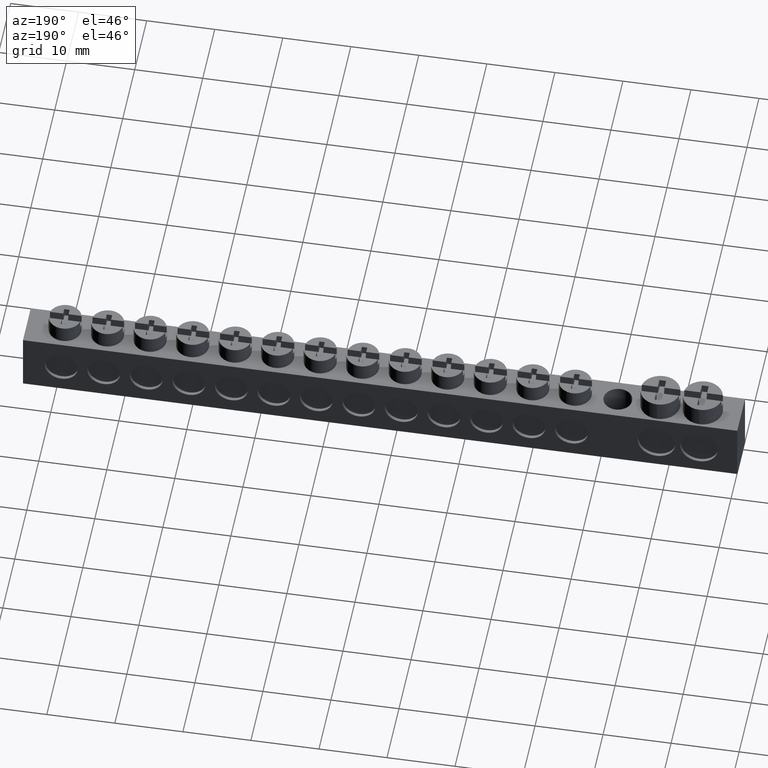
[diagram: clean part render]
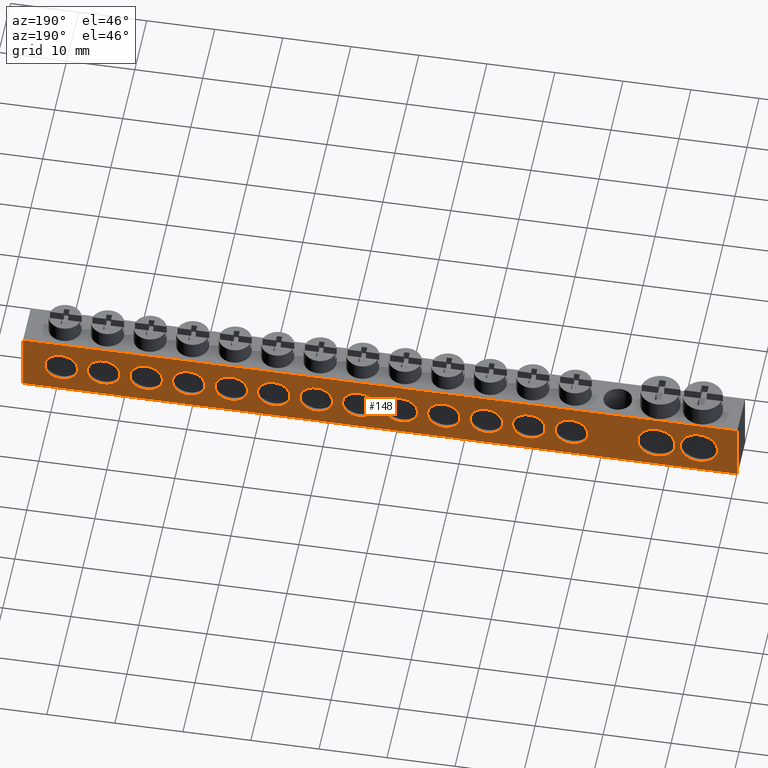
[diagram: same view with one face highlighted and labeled with its STEP entity id]
A machine part, auxiliary view. The second image highlights one B-rep face of the part: STEP entity #148.
In plain terms, the highlighted planar face has unit normal (0, -1, 0).
Its self-contained STEP definition (entity closure, byte-faithful):
#148 = ADVANCED_FACE ( 'NONE', ( #1503, #1506, #1535, #1483, #1520, #1489, #1499, #1537, #1522, #1485, #1498, #1500, #1502, #1505, #1497, #1526 ), #1501, .F. ) ;
#401 = EDGE_CURVE ( 'NONE', #523, #531, #9415, .T. ) ;
#403 = EDGE_CURVE ( 'NONE', #517, #518, #9399, .T. ) ;
#413 = EDGE_CURVE ( 'NONE', #585, #530, #9438, .T. ) ;
#417 = EDGE_CURVE ( 'NONE', #575, #554, #9420, .T. ) ;
#428 = EDGE_CURVE ( 'NONE', #514, #597, #9416, .T. ) ;
#435 = EDGE_CURVE ( 'NONE', #516, #625, #9429, .T. ) ;
#464 = VERTEX_POINT ( 'NONE', #6217 ) ;
#478 = VERTEX_POINT ( 'NONE', #6266 ) ;
#498 = VERTEX_POINT ( 'NONE', #6177 ) ;
#499 = VERTEX_POINT ( 'NONE', #9116 ) ;
#514 = VERTEX_POINT ( 'NONE', #9151 ) ;
#515 = VERTEX_POINT ( 'NONE', #9168 ) ;
#516 = VERTEX_POINT ( 'NONE', #9173 ) ;
#517 = VERTEX_POINT ( 'NONE', #9170 ) ;
#518 = VERTEX_POINT ( 'NONE', #9149 ) ;
#520 = VERTEX_POINT ( 'NONE', #9181 ) ;
#521 = VERTEX_POINT ( 'NONE', #9121 ) ;
#523 = VERTEX_POINT ( 'NONE', #9129 ) ;
#527 = VERTEX_POINT ( 'NONE', #9162 ) ;
#530 = VERTEX_POINT ( 'NONE', #9155 ) ;
#531 = VERTEX_POINT ( 'NONE', #9145 ) ;
#539 = VERTEX_POINT ( 'NONE', #8037 ) ;
#543 = VERTEX_POINT ( 'NONE', #8027 ) ;
#552 = VERTEX_POINT ( 'NONE', #8039 ) ;
#554 = VERTEX_POINT ( 'NONE', #8032 ) ;
#560 = VERTEX_POINT ( 'NONE', #8082 ) ;
#562 = VERTEX_POINT ( 'NONE', #8061 ) ;
#566 = VERTEX_POINT ( 'NONE', #8040 ) ;
#572 = VERTEX_POINT ( 'NONE', #8075 ) ;
#573 = VERTEX_POINT ( 'NONE', #8046 ) ;
#575 = VERTEX_POINT ( 'NONE', #8041 ) ;
#576 = VERTEX_POINT ( 'NONE', #8033 ) ;
#581 = VERTEX_POINT ( 'NONE', #8054 ) ;
#585 = VERTEX_POINT ( 'NONE', #8077 ) ;
#586 = VERTEX_POINT ( 'NONE', #8035 ) ;
#597 = VERTEX_POINT ( 'NONE', #8065 ) ;
#618 = VERTEX_POINT ( 'NONE', #8097 ) ;
#625 = VERTEX_POINT ( 'NONE', #8098 ) ;
#637 = VERTEX_POINT ( 'NONE', #8090 ) ;
#639 = VERTEX_POINT ( 'NONE', #8138 ) ;
#1483 = FACE_BOUND ( 'NONE', #4292, .T. ) ;
#1485 = FACE_BOUND ( 'NONE', #4327, .T. ) ;
#1489 = FACE_BOUND ( 'NONE', #4314, .T. ) ;
#1497 = FACE_BOUND ( 'NONE', #4398, .T. ) ;
#1498 = FACE_BOUND ( 'NONE', #4274, .T. ) ;
#1499 = FACE_BOUND ( 'NONE', #4270, .T. ) ;
#1500 = FACE_BOUND ( 'NONE', #4400, .T. ) ;
#1501 = PLANE ( 'NONE',  #9128 ) ;
#1502 = FACE_BOUND ( 'NONE', #4330, .T. ) ;
#1503 = FACE_OUTER_BOUND ( 'NONE', #4334, .T. ) ;
#1505 = FACE_BOUND ( 'NONE', #4406, .T. ) ;
#1506 = FACE_BOUND ( 'NONE', #4343, .T. ) ;
#1507 = CARTESIAN_POINT ( 'NONE',  ( 0.0000000000000000000, 6.499999999999999100, 9.000000000000001800 ) ) ;
#1511 = DIRECTION ( 'NONE',  ( 1.000000000000000000, 8.308062624409994900E-018, 0.0000000000000000000 ) ) ;
#1515 = DIRECTION ( 'NONE',  ( 8.308062624409994900E-018, -1.000000000000000000, 0.0000000000000000000 ) ) ;
#1520 = FACE_BOUND ( 'NONE', #4313, .T. ) ;
#1522 = FACE_BOUND ( 'NONE', #4271, .T. ) ;
#1526 = FACE_BOUND ( 'NONE', #4294, .T. ) ;
#1535 = FACE_BOUND ( 'NONE', #4322, .T. ) ;
#1537 = FACE_BOUND ( 'NONE', #4305, .T. ) ;
#1796 = CARTESIAN_POINT ( 'NONE',  ( 24.07500000000002800, 6.499999999999999100, 4.399999999999825400 ) ) ;
#1801 = DIRECTION ( 'NONE',  ( 0.0000000000000000000, 0.0000000000000000000, -1.000000000000000000 ) ) ;
#1806 = DIRECTION ( 'NONE',  ( 0.0000000000000000000, 1.000000000000000000, 0.0000000000000000000 ) ) ;
#1915 = ORIENTED_EDGE ( 'NONE', *, *, #6979, .F. ) ;
#1916 = ORIENTED_EDGE ( 'NONE', *, *, #7006, .F. ) ;
#1917 = ORIENTED_EDGE ( 'NONE', *, *, #417, .F. ) ;
#1918 = ORIENTED_EDGE ( 'NONE', *, *, #6989, .F. ) ;
#1919 = ORIENTED_EDGE ( 'NONE', *, *, #428, .F. ) ;
#2148 = CIRCLE ( 'NONE', #2170, 2.400000000000000800 ) ;
#2166 = VECTOR ( 'NONE', #9658, 1000.000000000000000 ) ;
#2169 = CIRCLE ( 'NONE', #2186, 2.400000000000000800 ) ;
#2170 = AXIS2_PLACEMENT_3D ( 'NONE', #9639, #9640, #9641 ) ;
#2172 = CIRCLE ( 'NONE', #2181, 2.400000000000000800 ) ;
#2181 = AXIS2_PLACEMENT_3D ( 'NONE', #9668, #9685, #9687 ) ;
#2186 = AXIS2_PLACEMENT_3D ( 'NONE', #9657, #9666, #9638 ) ;
#2204 = AXIS2_PLACEMENT_3D ( 'NONE', #9743, #9749, #9765 ) ;
#2205 = CIRCLE ( 'NONE', #2240, 2.400000000000000800 ) ;
#2214 = CIRCLE ( 'NONE', #2215, 2.400000000000000800 ) ;
#2215 = AXIS2_PLACEMENT_3D ( 'NONE', #9764, #9776, #9772 ) ;
#2218 = CIRCLE ( 'NONE', #2292, 2.749999999999998200 ) ;
#2221 = VECTOR ( 'NONE', #9697, 1000.000000000000000 ) ;
#2228 = VECTOR ( 'NONE', #9701, 1000.000000000000000 ) ;
#2229 = CIRCLE ( 'NONE', #2245, 2.400000000000000800 ) ;
#2234 = CIRCLE ( 'NONE', #2247, 2.400000000000000800 ) ;
#2235 = VECTOR ( 'NONE', #9695, 1000.000000000000000 ) ;
#2237 = CIRCLE ( 'NONE', #2204, 2.400000000000000800 ) ;
#2240 = AXIS2_PLACEMENT_3D ( 'NONE', #9750, #9751, #9758 ) ;
#2245 = AXIS2_PLACEMENT_3D ( 'NONE', #9736, #9737, #9730 ) ;
#2247 = AXIS2_PLACEMENT_3D ( 'NONE', #9723, #9712, #9707 ) ;
#2250 = CIRCLE ( 'NONE', #2308, 2.400000000000000800 ) ;
#2254 = CIRCLE ( 'NONE', #2256, 2.400000000000000800 ) ;
#2255 = CIRCLE ( 'NONE', #2279, 2.400000000000000800 ) ;
#2256 = AXIS2_PLACEMENT_3D ( 'NONE', #9801, #9787, #9793 ) ;
#2257 = CIRCLE ( 'NONE', #2265, 2.400000000000000800 ) ;
#2262 = CIRCLE ( 'NONE', #2294, 2.749999999999998200 ) ;
#2263 = AXIS2_PLACEMENT_3D ( 'NONE', #9803, #9794, #9797 ) ;
#2265 = AXIS2_PLACEMENT_3D ( 'NONE', #9829, #9839, #9831 ) ;
#2279 = AXIS2_PLACEMENT_3D ( 'NONE', #9781, #9780, #9791 ) ;
#2284 = CIRCLE ( 'NONE', #2263, 2.400000000000000800 ) ;
#2292 = AXIS2_PLACEMENT_3D ( 'NONE', #9784, #9805, #9810 ) ;
#2294 = AXIS2_PLACEMENT_3D ( 'NONE', #9783, #9800, #9802 ) ;
#2308 = AXIS2_PLACEMENT_3D ( 'NONE', #9779, #9798, #9789 ) ;
#2311 = CIRCLE ( 'NONE', #2317, 2.400000000000000800 ) ;
#2317 = AXIS2_PLACEMENT_3D ( 'NONE', #9866, #9899, #9895 ) ;
#2363 = CIRCLE ( 'NONE', #2366, 2.400000000000000800 ) ;
#2366 = AXIS2_PLACEMENT_3D ( 'NONE', #1796, #1806, #1801 ) ;
#3227 = AXIS2_PLACEMENT_3D ( 'NONE', #6582, #6606, #6585 ) ;
#3234 = AXIS2_PLACEMENT_3D ( 'NONE', #6574, #6603, #6577 ) ;
#3242 = CIRCLE ( 'NONE', #3227, 2.400000000000000800 ) ;
#3252 = CIRCLE ( 'NONE', #3272, 2.400000000000000800 ) ;
#3255 = CIRCLE ( 'NONE', #3256, 2.400000000000000800 ) ;
#3256 = AXIS2_PLACEMENT_3D ( 'NONE', #6625, #6643, #6616 ) ;
#3257 = CIRCLE ( 'NONE', #3261, 2.400000000000000800 ) ;
#3261 = AXIS2_PLACEMENT_3D ( 'NONE', #6653, #6652, #6634 ) ;
#3267 = CIRCLE ( 'NONE', #3280, 2.400000000000000800 ) ;
#3272 = AXIS2_PLACEMENT_3D ( 'NONE', #6596, #6578, #6571 ) ;
#3279 = CIRCLE ( 'NONE', #3234, 2.400000000000000800 ) ;
#3280 = AXIS2_PLACEMENT_3D ( 'NONE', #6615, #6635, #6651 ) ;
#3314 = AXIS2_PLACEMENT_3D ( 'NONE', #6720, #6721, #6730 ) ;
#3325 = CIRCLE ( 'NONE', #3314, 2.400000000000000800 ) ;
#3828 = ORIENTED_EDGE ( 'NONE', *, *, #5173, .F. ) ;
#3830 = ORIENTED_EDGE ( 'NONE', *, *, #435, .F. ) ;
#3832 = ORIENTED_EDGE ( 'NONE', *, *, #5211, .F. ) ;
#3834 = ORIENTED_EDGE ( 'NONE', *, *, #7015, .F. ) ;
#3835 = ORIENTED_EDGE ( 'NONE', *, *, #6963, .F. ) ;
#3838 = ORIENTED_EDGE ( 'NONE', *, *, #413, .F. ) ;
#3856 = ORIENTED_EDGE ( 'NONE', *, *, #5172, .F. ) ;
#3857 = ORIENTED_EDGE ( 'NONE', *, *, #6985, .F. ) ;
#3859 = ORIENTED_EDGE ( 'NONE', *, *, #5185, .F. ) ;
#3860 = ORIENTED_EDGE ( 'NONE', *, *, #6970, .F. ) ;
#3865 = ORIENTED_EDGE ( 'NONE', *, *, #6995, .F. ) ;
#3866 = ORIENTED_EDGE ( 'NONE', *, *, #7080, .F. ) ;
#3869 = ORIENTED_EDGE ( 'NONE', *, *, #6980, .T. ) ;
#3873 = ORIENTED_EDGE ( 'NONE', *, *, #7009, .F. ) ;
#3876 = ORIENTED_EDGE ( 'NONE', *, *, #7010, .F. ) ;
#3878 = ORIENTED_EDGE ( 'NONE', *, *, #7025, .F. ) ;
#3884 = ORIENTED_EDGE ( 'NONE', *, *, #403, .F. ) ;
#3885 = ORIENTED_EDGE ( 'NONE', *, *, #401, .F. ) ;
#3887 = ORIENTED_EDGE ( 'NONE', *, *, #6997, .F. ) ;
#3889 = ORIENTED_EDGE ( 'NONE', *, *, #6968, .F. ) ;
#3906 = ORIENTED_EDGE ( 'NONE', *, *, #5171, .F. ) ;
#3917 = ORIENTED_EDGE ( 'NONE', *, *, #7108, .F. ) ;
#3918 = ORIENTED_EDGE ( 'NONE', *, *, #7008, .F. ) ;
#3931 = ORIENTED_EDGE ( 'NONE', *, *, #6965, .F. ) ;
#3936 = ORIENTED_EDGE ( 'NONE', *, *, #5190, .F. ) ;
#3948 = ORIENTED_EDGE ( 'NONE', *, *, #6983, .F. ) ;
#3952 = ORIENTED_EDGE ( 'NONE', *, *, #7014, .F. ) ;
#3953 = ORIENTED_EDGE ( 'NONE', *, *, #7004, .F. ) ;
#3954 = ORIENTED_EDGE ( 'NONE', *, *, #5188, .F. ) ;
#4270 = EDGE_LOOP ( 'NONE', ( #1917, #3876 ) ) ;
#4271 = EDGE_LOOP ( 'NONE', ( #1919, #3865 ) ) ;
#4274 = EDGE_LOOP ( 'NONE', ( #3936, #3952 ) ) ;
#4292 = EDGE_LOOP ( 'NONE', ( #3828, #3878 ) ) ;
#4294 = EDGE_LOOP ( 'NONE', ( #3917, #3918 ) ) ;
#4305 = EDGE_LOOP ( 'NONE', ( #3838, #1918 ) ) ;
#4313 = EDGE_LOOP ( 'NONE', ( #3830, #3887 ) ) ;
#4314 = EDGE_LOOP ( 'NONE', ( #3859, #3835 ) ) ;
#4322 = EDGE_LOOP ( 'NONE', ( #3885, #1916 ) ) ;
#4327 = EDGE_LOOP ( 'NONE', ( #3832, #3873 ) ) ;
#4330 = EDGE_LOOP ( 'NONE', ( #3866, #3948 ) ) ;
#4334 = EDGE_LOOP ( 'NONE', ( #1915, #3889, #3869, #3857 ) ) ;
#4343 = EDGE_LOOP ( 'NONE', ( #3884, #3834 ) ) ;
#4398 = EDGE_LOOP ( 'NONE', ( #3906, #3860 ) ) ;
#4400 = EDGE_LOOP ( 'NONE', ( #3954, #3953 ) ) ;
#4406 = EDGE_LOOP ( 'NONE', ( #3856, #3931 ) ) ;
#5171 = EDGE_CURVE ( 'NONE', #573, #639, #3242, .T. ) ;
#5172 = EDGE_CURVE ( 'NONE', #576, #521, #3279, .T. ) ;
#5173 = EDGE_CURVE ( 'NONE', #552, #586, #3252, .T. ) ;
#5185 = EDGE_CURVE ( 'NONE', #581, #515, #3267, .T. ) ;
#5188 = EDGE_CURVE ( 'NONE', #566, #520, #3255, .T. ) ;
#5190 = EDGE_CURVE ( 'NONE', #543, #539, #3257, .T. ) ;
#5211 = EDGE_CURVE ( 'NONE', #527, #560, #3325, .T. ) ;
#6064 = DIRECTION ( 'NONE',  ( 0.0000000000000000000, 0.0000000000000000000, -1.000000000000000000 ) ) ;
#6070 = DIRECTION ( 'NONE',  ( 0.0000000000000000000, 1.000000000000000000, 0.0000000000000000000 ) ) ;
#6085 = CARTESIAN_POINT ( 'NONE',  ( 5.325000000000000200, 6.499999999999999100, 4.399999999999999500 ) ) ;
#6089 = CARTESIAN_POINT ( 'NONE',  ( 11.57500000000000300, 6.499999999999999100, 4.399999999999999500 ) ) ;
#6094 = DIRECTION ( 'NONE',  ( 0.0000000000000000000, 1.000000000000000000, 0.0000000000000000000 ) ) ;
#6095 = DIRECTION ( 'NONE',  ( 0.0000000000000000000, 0.0000000000000000000, -1.000000000000000000 ) ) ;
#6108 = DIRECTION ( 'NONE',  ( 0.0000000000000000000, 1.000000000000000000, 0.0000000000000000000 ) ) ;
#6127 = CARTESIAN_POINT ( 'NONE',  ( 74.07500000000001700, 6.499999999999999100, 4.399999999999940800 ) ) ;
#6129 = DIRECTION ( 'NONE',  ( 0.0000000000000000000, 1.000000000000000000, 0.0000000000000000000 ) ) ;
#6130 = DIRECTION ( 'NONE',  ( 0.0000000000000000000, 0.0000000000000000000, -1.000000000000000000 ) ) ;
#6138 = CARTESIAN_POINT ( 'NONE',  ( 80.32500000000000300, 6.500000000000000900, 4.399999999999955900 ) ) ;
#6150 = DIRECTION ( 'NONE',  ( 0.0000000000000000000, 0.0000000000000000000, -1.000000000000000000 ) ) ;
#6158 = CARTESIAN_POINT ( 'NONE',  ( 92.82500000000001700, 6.500000000000000900, 4.399999999999984400 ) ) ;
#6159 = DIRECTION ( 'NONE',  ( 0.0000000000000000000, 0.0000000000000000000, -1.000000000000000000 ) ) ;
#6165 = DIRECTION ( 'NONE',  ( 0.0000000000000000000, 0.0000000000000000000, -1.000000000000000000 ) ) ;
#6177 = CARTESIAN_POINT ( 'NONE',  ( 104.7000000000000000, 6.500000000000000000, 9.000000000000001800 ) ) ;
#6183 = CARTESIAN_POINT ( 'NONE',  ( 67.82500000000001700, 6.499999999999999100, 4.399999999999926600 ) ) ;
#6186 = DIRECTION ( 'NONE',  ( 0.0000000000000000000, 1.000000000000000000, 0.0000000000000000000 ) ) ;
#6191 = DIRECTION ( 'NONE',  ( 0.0000000000000000000, 1.000000000000000000, 0.0000000000000000000 ) ) ;
#6217 = CARTESIAN_POINT ( 'NONE',  ( -0.2999999999999999900, 6.499999999999999100, 0.0000000000000000000 ) ) ;
#6266 = CARTESIAN_POINT ( 'NONE',  ( -0.2999999999999999900, 6.499999999999999100, 9.000000000000001800 ) ) ;
#6571 = DIRECTION ( 'NONE',  ( 0.0000000000000000000, 0.0000000000000000000, -1.000000000000000000 ) ) ;
#6574 = CARTESIAN_POINT ( 'NONE',  ( 36.57500000000002400, 6.499999999999999100, 4.399999999999853800 ) ) ;
#6577 = DIRECTION ( 'NONE',  ( 0.0000000000000000000, 0.0000000000000000000, -1.000000000000000000 ) ) ;
#6578 = DIRECTION ( 'NONE',  ( 0.0000000000000000000, 1.000000000000000000, 0.0000000000000000000 ) ) ;
#6582 = CARTESIAN_POINT ( 'NONE',  ( 30.32500000000003100, 6.499999999999999100, 4.399999999999839600 ) ) ;
#6585 = DIRECTION ( 'NONE',  ( 0.0000000000000000000, 0.0000000000000000000, -1.000000000000000000 ) ) ;
#6596 = CARTESIAN_POINT ( 'NONE',  ( 99.07500000000001700, 6.500000000000000900, 4.399999999999999500 ) ) ;
#6603 = DIRECTION ( 'NONE',  ( 0.0000000000000000000, 1.000000000000000000, 0.0000000000000000000 ) ) ;
#6606 = DIRECTION ( 'NONE',  ( 0.0000000000000000000, 1.000000000000000000, 0.0000000000000000000 ) ) ;
#6615 = CARTESIAN_POINT ( 'NONE',  ( 86.57500000000001700, 6.500000000000000900, 4.399999999999970200 ) ) ;
#6616 = DIRECTION ( 'NONE',  ( 0.0000000000000000000, 0.0000000000000000000, -1.000000000000000000 ) ) ;
#6625 = CARTESIAN_POINT ( 'NONE',  ( 49.07500000000003100, 6.499999999999999100, 4.399999999999883100 ) ) ;
#6634 = DIRECTION ( 'NONE',  ( 0.0000000000000000000, 0.0000000000000000000, -1.000000000000000000 ) ) ;
#6635 = DIRECTION ( 'NONE',  ( 0.0000000000000000000, 1.000000000000000000, 0.0000000000000000000 ) ) ;
#6643 = DIRECTION ( 'NONE',  ( 0.0000000000000000000, 1.000000000000000000, 0.0000000000000000000 ) ) ;
#6651 = DIRECTION ( 'NONE',  ( 0.0000000000000000000, 0.0000000000000000000, -1.000000000000000000 ) ) ;
#6652 = DIRECTION ( 'NONE',  ( 0.0000000000000000000, 1.000000000000000000, 0.0000000000000000000 ) ) ;
#6653 = CARTESIAN_POINT ( 'NONE',  ( 55.32500000000001700, 6.499999999999999100, 4.399999999999898200 ) ) ;
#6720 = CARTESIAN_POINT ( 'NONE',  ( 61.57500000000001700, 6.499999999999999100, 4.399999999999911500 ) ) ;
#6721 = DIRECTION ( 'NONE',  ( 0.0000000000000000000, 1.000000000000000000, 0.0000000000000000000 ) ) ;
#6730 = DIRECTION ( 'NONE',  ( 0.0000000000000000000, 0.0000000000000000000, -1.000000000000000000 ) ) ;
#6963 = EDGE_CURVE ( 'NONE', #515, #581, #2169, .T. ) ;
#6965 = EDGE_CURVE ( 'NONE', #521, #576, #2148, .T. ) ;
#6968 = EDGE_CURVE ( 'NONE', #498, #478, #9648, .T. ) ;
#6970 = EDGE_CURVE ( 'NONE', #639, #573, #2172, .T. ) ;
#6979 = EDGE_CURVE ( 'NONE', #478, #464, #9692, .T. ) ;
#6980 = EDGE_CURVE ( 'NONE', #498, #499, #9724, .T. ) ;
#6983 = EDGE_CURVE ( 'NONE', #572, #562, #2234, .T. ) ;
#6985 = EDGE_CURVE ( 'NONE', #464, #499, #9720, .T. ) ;
#6989 = EDGE_CURVE ( 'NONE', #530, #585, #2229, .T. ) ;
#6995 = EDGE_CURVE ( 'NONE', #597, #514, #2237, .T. ) ;
#6997 = EDGE_CURVE ( 'NONE', #625, #516, #2205, .T. ) ;
#7004 = EDGE_CURVE ( 'NONE', #520, #566, #2214, .T. ) ;
#7006 = EDGE_CURVE ( 'NONE', #531, #523, #2218, .T. ) ;
#7008 = EDGE_CURVE ( 'NONE', #637, #618, #2284, .T. ) ;
#7009 = EDGE_CURVE ( 'NONE', #560, #527, #2254, .T. ) ;
#7010 = EDGE_CURVE ( 'NONE', #554, #575, #2255, .T. ) ;
#7014 = EDGE_CURVE ( 'NONE', #539, #543, #2250, .T. ) ;
#7015 = EDGE_CURVE ( 'NONE', #518, #517, #2262, .T. ) ;
#7025 = EDGE_CURVE ( 'NONE', #586, #552, #2257, .T. ) ;
#7080 = EDGE_CURVE ( 'NONE', #562, #572, #2311, .T. ) ;
#7108 = EDGE_CURVE ( 'NONE', #618, #637, #2363, .T. ) ;
#8027 = CARTESIAN_POINT ( 'NONE',  ( 55.32500000000001700, 6.499999999999999100, 1.999999999999897200 ) ) ;
#8032 = CARTESIAN_POINT ( 'NONE',  ( 80.32500000000000300, 6.500000000000000900, 6.799999999999957200 ) ) ;
#8033 = CARTESIAN_POINT ( 'NONE',  ( 36.57500000000002400, 6.499999999999999100, 1.999999999999853000 ) ) ;
#8035 = CARTESIAN_POINT ( 'NONE',  ( 99.07500000000001700, 6.500000000000000900, 6.800000000000000700 ) ) ;
#8037 = CARTESIAN_POINT ( 'NONE',  ( 55.32500000000001700, 6.499999999999999100, 6.799999999999898600 ) ) ;
#8039 = CARTESIAN_POINT ( 'NONE',  ( 99.07500000000001700, 6.500000000000000900, 1.999999999999998700 ) ) ;
#8040 = CARTESIAN_POINT ( 'NONE',  ( 49.07500000000003100, 6.499999999999999100, 1.999999999999882500 ) ) ;
#8041 = CARTESIAN_POINT ( 'NONE',  ( 80.32500000000000300, 6.500000000000000900, 1.999999999999955400 ) ) ;
#8046 = CARTESIAN_POINT ( 'NONE',  ( 30.32500000000003100, 6.499999999999999100, 1.999999999999839200 ) ) ;
#8054 = CARTESIAN_POINT ( 'NONE',  ( 86.57500000000001700, 6.500000000000000900, 1.999999999999969400 ) ) ;
#8061 = CARTESIAN_POINT ( 'NONE',  ( 42.82500000000002400, 6.499999999999999100, 1.999999999999867700 ) ) ;
#8065 = CARTESIAN_POINT ( 'NONE',  ( 67.82500000000001700, 6.499999999999999100, 6.799999999999927900 ) ) ;
#8075 = CARTESIAN_POINT ( 'NONE',  ( 42.82500000000002400, 6.499999999999999100, 6.799999999999868400 ) ) ;
#8077 = CARTESIAN_POINT ( 'NONE',  ( 74.07500000000001700, 6.499999999999999100, 1.999999999999940700 ) ) ;
#8082 = CARTESIAN_POINT ( 'NONE',  ( 61.57500000000001700, 6.499999999999999100, 6.799999999999911900 ) ) ;
#8090 = CARTESIAN_POINT ( 'NONE',  ( 24.07500000000002800, 6.499999999999999100, 6.799999999999824900 ) ) ;
#8097 = CARTESIAN_POINT ( 'NONE',  ( 24.07500000000002800, 6.499999999999999100, 1.999999999999824400 ) ) ;
#8098 = CARTESIAN_POINT ( 'NONE',  ( 92.82500000000001700, 6.500000000000000900, 6.799999999999984700 ) ) ;
#8138 = CARTESIAN_POINT ( 'NONE',  ( 30.32500000000003100, 6.499999999999999100, 6.799999999999840800 ) ) ;
#9116 = CARTESIAN_POINT ( 'NONE',  ( 104.7000000000000000, 6.499999999999999100, 0.0000000000000000000 ) ) ;
#9121 = CARTESIAN_POINT ( 'NONE',  ( 36.57500000000002400, 6.499999999999999100, 6.799999999999855000 ) ) ;
#9128 = AXIS2_PLACEMENT_3D ( 'NONE', #1507, #1515, #1511 ) ;
#9129 = CARTESIAN_POINT ( 'NONE',  ( 11.57500000000000300, 6.499999999999999100, 1.650000000000001200 ) ) ;
#9145 = CARTESIAN_POINT ( 'NONE',  ( 11.57500000000000300, 6.499999999999999100, 7.149999999999997700 ) ) ;
#9149 = CARTESIAN_POINT ( 'NONE',  ( 5.325000000000000200, 6.499999999999999100, 7.149999999999997700 ) ) ;
#9151 = CARTESIAN_POINT ( 'NONE',  ( 67.82500000000001700, 6.499999999999999100, 1.999999999999925800 ) ) ;
#9155 = CARTESIAN_POINT ( 'NONE',  ( 74.07500000000001700, 6.499999999999999100, 6.799999999999941200 ) ) ;
#9162 = CARTESIAN_POINT ( 'NONE',  ( 61.57500000000001700, 6.499999999999999100, 1.999999999999911200 ) ) ;
#9168 = CARTESIAN_POINT ( 'NONE',  ( 86.57500000000001700, 6.500000000000000900, 6.799999999999971400 ) ) ;
#9170 = CARTESIAN_POINT ( 'NONE',  ( 5.325000000000000200, 6.499999999999999100, 1.650000000000001200 ) ) ;
#9173 = CARTESIAN_POINT ( 'NONE',  ( 92.82500000000001700, 6.500000000000000900, 1.999999999999984000 ) ) ;
#9181 = CARTESIAN_POINT ( 'NONE',  ( 49.07500000000003100, 6.499999999999999100, 6.799999999999884400 ) ) ;
#9399 = CIRCLE ( 'NONE', #9439, 2.749999999999998200 ) ;
#9415 = CIRCLE ( 'NONE', #9437, 2.749999999999998200 ) ;
#9416 = CIRCLE ( 'NONE', #9422, 2.400000000000000800 ) ;
#9420 = CIRCLE ( 'NONE', #9445, 2.400000000000000800 ) ;
#9422 = AXIS2_PLACEMENT_3D ( 'NONE', #6183, #6186, #6165 ) ;
#9429 = CIRCLE ( 'NONE', #9499, 2.400000000000000800 ) ;
#9437 = AXIS2_PLACEMENT_3D ( 'NONE', #6089, #6070, #6064 ) ;
#9438 = CIRCLE ( 'NONE', #9441, 2.400000000000000800 ) ;
#9439 = AXIS2_PLACEMENT_3D ( 'NONE', #6085, #6094, #6095 ) ;
#9441 = AXIS2_PLACEMENT_3D ( 'NONE', #6127, #6129, #6150 ) ;
#9445 = AXIS2_PLACEMENT_3D ( 'NONE', #6138, #6108, #6130 ) ;
#9499 = AXIS2_PLACEMENT_3D ( 'NONE', #6158, #6191, #6159 ) ;
#9638 = DIRECTION ( 'NONE',  ( 0.0000000000000000000, 0.0000000000000000000, -1.000000000000000000 ) ) ;
#9639 = CARTESIAN_POINT ( 'NONE',  ( 36.57500000000002400, 6.499999999999999100, 4.399999999999853800 ) ) ;
#9640 = DIRECTION ( 'NONE',  ( 0.0000000000000000000, 1.000000000000000000, 0.0000000000000000000 ) ) ;
#9641 = DIRECTION ( 'NONE',  ( 0.0000000000000000000, 0.0000000000000000000, -1.000000000000000000 ) ) ;
#9648 = LINE ( 'NONE', #9653, #2166 ) ;
#9653 = CARTESIAN_POINT ( 'NONE',  ( 0.0000000000000000000, 6.499999999999999100, 9.000000000000001800 ) ) ;
#9657 = CARTESIAN_POINT ( 'NONE',  ( 86.57500000000001700, 6.500000000000000900, 4.399999999999970200 ) ) ;
#9658 = DIRECTION ( 'NONE',  ( -1.000000000000000000, -8.308062624409994900E-018, -0.0000000000000000000 ) ) ;
#9666 = DIRECTION ( 'NONE',  ( 0.0000000000000000000, 1.000000000000000000, 0.0000000000000000000 ) ) ;
#9668 = CARTESIAN_POINT ( 'NONE',  ( 30.32500000000003100, 6.499999999999999100, 4.399999999999839600 ) ) ;
#9685 = DIRECTION ( 'NONE',  ( 0.0000000000000000000, 1.000000000000000000, 0.0000000000000000000 ) ) ;
#9687 = DIRECTION ( 'NONE',  ( 0.0000000000000000000, 0.0000000000000000000, -1.000000000000000000 ) ) ;
#9692 = LINE ( 'NONE', #9709, #2221 ) ;
#9695 = DIRECTION ( 'NONE',  ( 0.0000000000000000000, 0.0000000000000000000, -1.000000000000000000 ) ) ;
#9697 = DIRECTION ( 'NONE',  ( 0.0000000000000000000, 0.0000000000000000000, -1.000000000000000000 ) ) ;
#9701 = DIRECTION ( 'NONE',  ( 1.000000000000000000, -0.0000000000000000000, 0.0000000000000000000 ) ) ;
#9707 = DIRECTION ( 'NONE',  ( 0.0000000000000000000, 0.0000000000000000000, -1.000000000000000000 ) ) ;
#9709 = CARTESIAN_POINT ( 'NONE',  ( -0.2999999999999999900, 6.499999999999999100, 9.000000000000001800 ) ) ;
#9711 = CARTESIAN_POINT ( 'NONE',  ( 0.0000000000000000000, 6.499999999999999100, 0.0000000000000000000 ) ) ;
#9712 = DIRECTION ( 'NONE',  ( 0.0000000000000000000, 1.000000000000000000, 0.0000000000000000000 ) ) ;
#9716 = CARTESIAN_POINT ( 'NONE',  ( 104.7000000000000000, 6.500000000000000000, 9.000000000000001800 ) ) ;
#9720 = LINE ( 'NONE', #9711, #2228 ) ;
#9723 = CARTESIAN_POINT ( 'NONE',  ( 42.82500000000002400, 6.499999999999999100, 4.399999999999868000 ) ) ;
#9724 = LINE ( 'NONE', #9716, #2235 ) ;
#9730 = DIRECTION ( 'NONE',  ( 0.0000000000000000000, 0.0000000000000000000, -1.000000000000000000 ) ) ;
#9736 = CARTESIAN_POINT ( 'NONE',  ( 74.07500000000001700, 6.499999999999999100, 4.399999999999940800 ) ) ;
#9737 = DIRECTION ( 'NONE',  ( 0.0000000000000000000, 1.000000000000000000, 0.0000000000000000000 ) ) ;
#9743 = CARTESIAN_POINT ( 'NONE',  ( 67.82500000000001700, 6.499999999999999100, 4.399999999999926600 ) ) ;
#9749 = DIRECTION ( 'NONE',  ( 0.0000000000000000000, 1.000000000000000000, 0.0000000000000000000 ) ) ;
#9750 = CARTESIAN_POINT ( 'NONE',  ( 92.82500000000001700, 6.500000000000000900, 4.399999999999984400 ) ) ;
#9751 = DIRECTION ( 'NONE',  ( 0.0000000000000000000, 1.000000000000000000, 0.0000000000000000000 ) ) ;
#9758 = DIRECTION ( 'NONE',  ( 0.0000000000000000000, 0.0000000000000000000, -1.000000000000000000 ) ) ;
#9764 = CARTESIAN_POINT ( 'NONE',  ( 49.07500000000003100, 6.499999999999999100, 4.399999999999883100 ) ) ;
#9765 = DIRECTION ( 'NONE',  ( 0.0000000000000000000, 0.0000000000000000000, -1.000000000000000000 ) ) ;
#9772 = DIRECTION ( 'NONE',  ( 0.0000000000000000000, 0.0000000000000000000, -1.000000000000000000 ) ) ;
#9776 = DIRECTION ( 'NONE',  ( 0.0000000000000000000, 1.000000000000000000, 0.0000000000000000000 ) ) ;
#9779 = CARTESIAN_POINT ( 'NONE',  ( 55.32500000000001700, 6.499999999999999100, 4.399999999999898200 ) ) ;
#9780 = DIRECTION ( 'NONE',  ( 0.0000000000000000000, 1.000000000000000000, 0.0000000000000000000 ) ) ;
#9781 = CARTESIAN_POINT ( 'NONE',  ( 80.32500000000000300, 6.500000000000000900, 4.399999999999955900 ) ) ;
#9783 = CARTESIAN_POINT ( 'NONE',  ( 5.325000000000000200, 6.499999999999999100, 4.399999999999999500 ) ) ;
#9784 = CARTESIAN_POINT ( 'NONE',  ( 11.57500000000000300, 6.499999999999999100, 4.399999999999999500 ) ) ;
#9787 = DIRECTION ( 'NONE',  ( 0.0000000000000000000, 1.000000000000000000, 0.0000000000000000000 ) ) ;
#9789 = DIRECTION ( 'NONE',  ( 0.0000000000000000000, 0.0000000000000000000, -1.000000000000000000 ) ) ;
#9791 = DIRECTION ( 'NONE',  ( 0.0000000000000000000, 0.0000000000000000000, -1.000000000000000000 ) ) ;
#9793 = DIRECTION ( 'NONE',  ( 0.0000000000000000000, 0.0000000000000000000, -1.000000000000000000 ) ) ;
#9794 = DIRECTION ( 'NONE',  ( 0.0000000000000000000, 1.000000000000000000, 0.0000000000000000000 ) ) ;
#9797 = DIRECTION ( 'NONE',  ( 0.0000000000000000000, 0.0000000000000000000, -1.000000000000000000 ) ) ;
#9798 = DIRECTION ( 'NONE',  ( 0.0000000000000000000, 1.000000000000000000, 0.0000000000000000000 ) ) ;
#9800 = DIRECTION ( 'NONE',  ( 0.0000000000000000000, 1.000000000000000000, 0.0000000000000000000 ) ) ;
#9801 = CARTESIAN_POINT ( 'NONE',  ( 61.57500000000001700, 6.499999999999999100, 4.399999999999911500 ) ) ;
#9802 = DIRECTION ( 'NONE',  ( 0.0000000000000000000, 0.0000000000000000000, -1.000000000000000000 ) ) ;
#9803 = CARTESIAN_POINT ( 'NONE',  ( 24.07500000000002800, 6.499999999999999100, 4.399999999999825400 ) ) ;
#9805 = DIRECTION ( 'NONE',  ( 0.0000000000000000000, 1.000000000000000000, 0.0000000000000000000 ) ) ;
#9810 = DIRECTION ( 'NONE',  ( 0.0000000000000000000, 0.0000000000000000000, -1.000000000000000000 ) ) ;
#9829 = CARTESIAN_POINT ( 'NONE',  ( 99.07500000000001700, 6.500000000000000900, 4.399999999999999500 ) ) ;
#9831 = DIRECTION ( 'NONE',  ( 0.0000000000000000000, 0.0000000000000000000, -1.000000000000000000 ) ) ;
#9839 = DIRECTION ( 'NONE',  ( 0.0000000000000000000, 1.000000000000000000, 0.0000000000000000000 ) ) ;
#9866 = CARTESIAN_POINT ( 'NONE',  ( 42.82500000000002400, 6.499999999999999100, 4.399999999999868000 ) ) ;
#9895 = DIRECTION ( 'NONE',  ( 0.0000000000000000000, 0.0000000000000000000, -1.000000000000000000 ) ) ;
#9899 = DIRECTION ( 'NONE',  ( 0.0000000000000000000, 1.000000000000000000, 0.0000000000000000000 ) ) ;